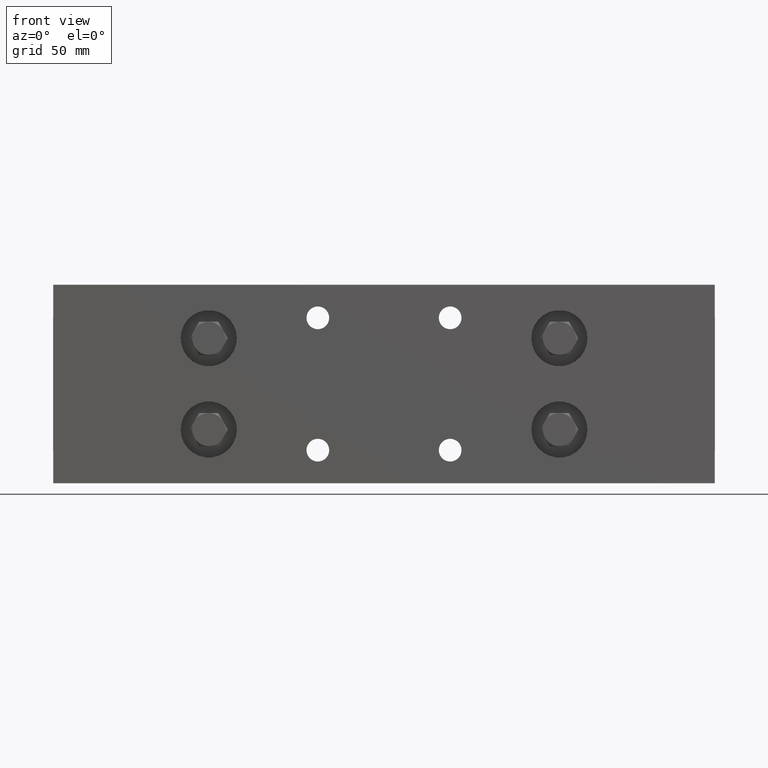
[diagram: clean part render]
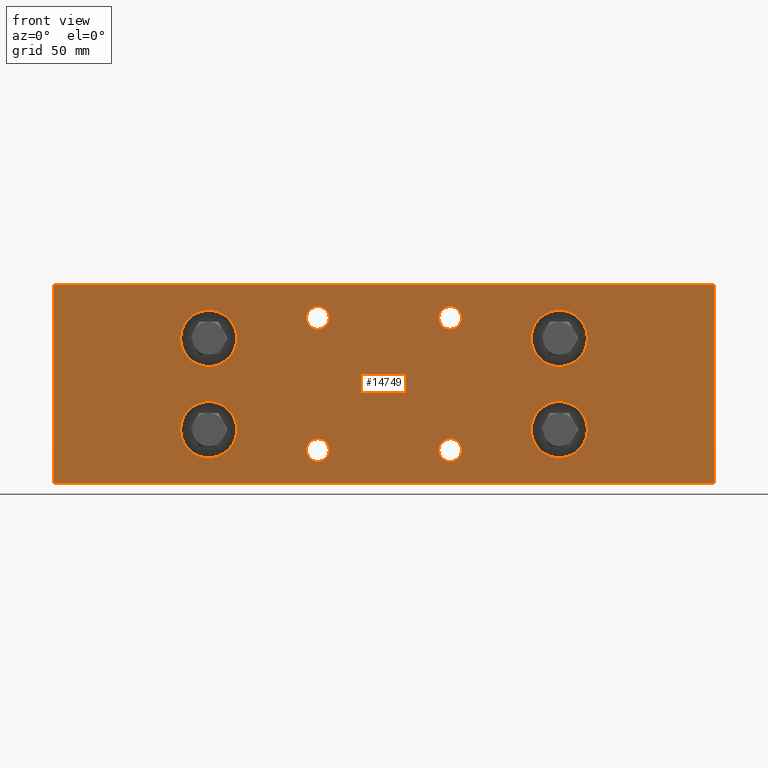
[diagram: same view with one face highlighted and labeled with its STEP entity id]
A machine part, front view. The second image highlights one B-rep face of the part: STEP entity #14749.
In plain terms, the highlighted planar face has unit normal (0, 1, 0).
Its self-contained STEP definition (entity closure, byte-faithful):
#391 = CARTESIAN_POINT ( 'NONE',  ( 0.001999999999999596300, -0.8799999999999998900, -1.501999999999998000 ) ) ;
#708 = LINE ( 'NONE', #15201, #17532 ) ;
#811 = VERTEX_POINT ( 'NONE', #3243 ) ;
#1092 = VERTEX_POINT ( 'NONE', #1358 ) ;
#1122 = LINE ( 'NONE', #14680, #1444 ) ;
#1137 = AXIS2_PLACEMENT_3D ( 'NONE', #20937, #9688, #22854 ) ;
#1153 = CIRCLE ( 'NONE', #2102, 0.4249999999999999900 ) ;
#1269 = PLANE ( 'NONE',  #10591 ) ;
#1358 = CARTESIAN_POINT ( 'NONE',  ( 5.830000000000000100, -0.8799999999999998900, 0.9980000000000023300 ) ) ;
#1444 = VECTOR ( 'NONE', #3492, 39.37007874015748100 ) ;
#2057 = EDGE_LOOP ( 'NONE', ( #14899 ) ) ;
#2102 = AXIS2_PLACEMENT_3D ( 'NONE', #7772, #20904, #9651 ) ;
#2144 = EDGE_LOOP ( 'NONE', ( #2155 ) ) ;
#2155 = ORIENTED_EDGE ( 'NONE', *, *, #18079, .F. ) ;
#2392 = CIRCLE ( 'NONE', #1137, 0.4249999999999999900 ) ;
#2498 = VERTEX_POINT ( 'NONE', #4226 ) ;
#2592 = FACE_BOUND ( 'NONE', #2688, .T. ) ;
#2688 = EDGE_LOOP ( 'NONE', ( #19139 ) ) ;
#2720 = EDGE_CURVE ( 'NONE', #11833, #16682, #9140, .T. ) ;
#2968 = EDGE_LOOP ( 'NONE', ( #17612 ) ) ;
#3004 = CARTESIAN_POINT ( 'NONE',  ( 6.174000000000000400, -0.8799999999999998900, -1.001999999999998000 ) ) ;
#3207 = DIRECTION ( 'NONE',  ( 0.0000000000000000000, 1.000000000000000000, 0.0000000000000000000 ) ) ;
#3243 = CARTESIAN_POINT ( 'NONE',  ( 7.227000000000000300, -0.8799999999999998900, -0.6919999999999976200 ) ) ;
#3492 = DIRECTION ( 'NONE',  ( 2.391543916884179100E-017, -0.0000000000000000000, 1.000000000000000000 ) ) ;
#3758 = ORIENTED_EDGE ( 'NONE', *, *, #13756, .T. ) ;
#4164 = CARTESIAN_POINT ( 'NONE',  ( 7.652000000000000100, -0.8799999999999998900, 0.6880000000000021700 ) ) ;
#4226 = CARTESIAN_POINT ( 'NONE',  ( 10.00200000000000100, -0.8799999999999998900, -1.501999999999998000 ) ) ;
#4751 = CARTESIAN_POINT ( 'NONE',  ( 1.926999999999999400, -0.8799999999999998900, -0.6919999999999976200 ) ) ;
#5390 = CARTESIAN_POINT ( 'NONE',  ( 1.926999999999999400, -0.8799999999999998900, 0.6880000000000021700 ) ) ;
#5412 = CARTESIAN_POINT ( 'NONE',  ( 0.001999999999999596300, -0.8799999999999998900, 1.498000000000002200 ) ) ;
#5417 = VERTEX_POINT ( 'NONE', #5390 ) ;
#5451 = VECTOR ( 'NONE', #6072, 39.37007874015748100 ) ;
#5511 = EDGE_LOOP ( 'NONE', ( #9047 ) ) ;
#5642 = EDGE_LOOP ( 'NONE', ( #17903, #8936, #23748, #17125 ) ) ;
#5847 = DIRECTION ( 'NONE',  ( -1.000000000000000000, 0.0000000000000000000, 2.391543916884179100E-017 ) ) ;
#6016 = DIRECTION ( 'NONE',  ( -1.000000000000000000, 0.0000000000000000000, 0.0000000000000000000 ) ) ;
#6072 = DIRECTION ( 'NONE',  ( 2.391543916884179100E-017, -0.0000000000000000000, 1.000000000000000000 ) ) ;
#6305 = CARTESIAN_POINT ( 'NONE',  ( 0.001999999999999596300, -0.8799999999999998900, -1.501999999999998000 ) ) ;
#6726 = CARTESIAN_POINT ( 'NONE',  ( 3.829999999999999200, -0.8799999999999998900, -1.001999999999998000 ) ) ;
#7204 = FACE_BOUND ( 'NONE', #2057, .T. ) ;
#7772 = CARTESIAN_POINT ( 'NONE',  ( 2.351999999999999400, -0.8799999999999998900, 0.6880000000000021700 ) ) ;
#7901 = DIRECTION ( 'NONE',  ( 0.0000000000000000000, 1.000000000000000000, 0.0000000000000000000 ) ) ;
#8296 = CARTESIAN_POINT ( 'NONE',  ( 7.227000000000000300, -0.8799999999999998900, 0.6880000000000021700 ) ) ;
#8496 = AXIS2_PLACEMENT_3D ( 'NONE', #19140, #7901, #21018 ) ;
#8497 = CARTESIAN_POINT ( 'NONE',  ( 10.00200000000000100, -0.8799999999999998900, 1.498000000000002200 ) ) ;
#8734 = AXIS2_PLACEMENT_3D ( 'NONE', #10366, #23602, #12244 ) ;
#8936 = ORIENTED_EDGE ( 'NONE', *, *, #18119, .F. ) ;
#9047 = ORIENTED_EDGE ( 'NONE', *, *, #23113, .F. ) ;
#9140 = LINE ( 'NONE', #8497, #22467 ) ;
#9216 = DIRECTION ( 'NONE',  ( 0.0000000000000000000, -1.000000000000000000, 0.0000000000000000000 ) ) ;
#9275 = CARTESIAN_POINT ( 'NONE',  ( 6.001999999999999800, -0.8799999999999998900, -1.001999999999998000 ) ) ;
#9485 = VERTEX_POINT ( 'NONE', #6305 ) ;
#9601 = VERTEX_POINT ( 'NONE', #12802 ) ;
#9651 = DIRECTION ( 'NONE',  ( -1.000000000000000000, 0.0000000000000000000, 0.0000000000000000000 ) ) ;
#9688 = DIRECTION ( 'NONE',  ( 0.0000000000000000000, -1.000000000000000000, 0.0000000000000000000 ) ) ;
#9835 = EDGE_CURVE ( 'NONE', #18459, #18459, #21866, .T. ) ;
#10366 = CARTESIAN_POINT ( 'NONE',  ( 4.001999999999999800, -0.8799999999999998900, -1.001999999999998000 ) ) ;
#10418 = CIRCLE ( 'NONE', #12515, 0.1720000000000002400 ) ;
#10591 = AXIS2_PLACEMENT_3D ( 'NONE', #21986, #10686, #23927 ) ;
#10686 = DIRECTION ( 'NONE',  ( 0.0000000000000000000, 1.000000000000000000, 0.0000000000000000000 ) ) ;
#10938 = FACE_BOUND ( 'NONE', #17997, .T. ) ;
#11105 = DIRECTION ( 'NONE',  ( 1.000000000000000000, 0.0000000000000000000, 0.0000000000000000000 ) ) ;
#11833 = VERTEX_POINT ( 'NONE', #16655 ) ;
#12065 = AXIS2_PLACEMENT_3D ( 'NONE', #20463, #9216, #22368 ) ;
#12142 = FACE_BOUND ( 'NONE', #5511, .T. ) ;
#12244 = DIRECTION ( 'NONE',  ( -1.000000000000000000, 0.0000000000000000000, 0.0000000000000000000 ) ) ;
#12515 = AXIS2_PLACEMENT_3D ( 'NONE', #14369, #3207, #16285 ) ;
#12802 = CARTESIAN_POINT ( 'NONE',  ( 4.173999999999999500, -0.8799999999999998900, 0.9980000000000023300 ) ) ;
#12813 = EDGE_CURVE ( 'NONE', #23529, #23529, #20127, .T. ) ;
#13756 = EDGE_CURVE ( 'NONE', #21613, #21613, #18363, .T. ) ;
#14184 = EDGE_CURVE ( 'NONE', #18688, #18688, #15066, .T. ) ;
#14369 = CARTESIAN_POINT ( 'NONE',  ( 6.001999999999999800, -0.8799999999999998900, 0.9980000000000023300 ) ) ;
#14680 = CARTESIAN_POINT ( 'NONE',  ( 10.00200000000000100, -0.8799999999999998900, -1.501999999999998000 ) ) ;
#14710 = FACE_BOUND ( 'NONE', #2144, .T. ) ;
#14749 = ADVANCED_FACE ( 'NONE', ( #17637, #2592, #7204, #20987, #14710, #20981, #12142, #10938, #19242 ), #1269, .F. ) ;
#14899 = ORIENTED_EDGE ( 'NONE', *, *, #17843, .T. ) ;
#14935 = EDGE_CURVE ( 'NONE', #2498, #9485, #708, .T. ) ;
#15066 = CIRCLE ( 'NONE', #8734, 0.1720000000000002400 ) ;
#15201 = CARTESIAN_POINT ( 'NONE',  ( 10.00200000000000100, -0.8799999999999998900, -1.501999999999998000 ) ) ;
#15388 = EDGE_LOOP ( 'NONE', ( #23965 ) ) ;
#16285 = DIRECTION ( 'NONE',  ( -1.000000000000000000, 0.0000000000000000000, 0.0000000000000000000 ) ) ;
#16655 = CARTESIAN_POINT ( 'NONE',  ( 10.00200000000000100, -0.8799999999999998900, 1.498000000000002200 ) ) ;
#16682 = VERTEX_POINT ( 'NONE', #5412 ) ;
#17125 = ORIENTED_EDGE ( 'NONE', *, *, #23062, .T. ) ;
#17277 = DIRECTION ( 'NONE',  ( 0.0000000000000000000, -1.000000000000000000, 0.0000000000000000000 ) ) ;
#17532 = VECTOR ( 'NONE', #5847, 39.37007874015748100 ) ;
#17587 = ORIENTED_EDGE ( 'NONE', *, *, #12813, .F. ) ;
#17612 = ORIENTED_EDGE ( 'NONE', *, *, #14184, .T. ) ;
#17637 = FACE_BOUND ( 'NONE', #2968, .T. ) ;
#17843 = EDGE_CURVE ( 'NONE', #1092, #1092, #10418, .T. ) ;
#17903 = ORIENTED_EDGE ( 'NONE', *, *, #2720, .T. ) ;
#17997 = EDGE_LOOP ( 'NONE', ( #17587 ) ) ;
#18079 = EDGE_CURVE ( 'NONE', #811, #811, #2392, .T. ) ;
#18119 = EDGE_CURVE ( 'NONE', #9485, #16682, #22775, .T. ) ;
#18363 = CIRCLE ( 'NONE', #18931, 0.1720000000000002400 ) ;
#18459 = VERTEX_POINT ( 'NONE', #8296 ) ;
#18688 = VERTEX_POINT ( 'NONE', #6726 ) ;
#18931 = AXIS2_PLACEMENT_3D ( 'NONE', #9275, #22428, #11105 ) ;
#19139 = ORIENTED_EDGE ( 'NONE', *, *, #22838, .T. ) ;
#19140 = CARTESIAN_POINT ( 'NONE',  ( 4.001999999999999800, -0.8799999999999998900, 0.9980000000000023300 ) ) ;
#19242 = FACE_OUTER_BOUND ( 'NONE', #5642, .T. ) ;
#19731 = DIRECTION ( 'NONE',  ( -1.000000000000000000, 0.0000000000000000000, 2.391543916884179100E-017 ) ) ;
#20127 = CIRCLE ( 'NONE', #12065, 0.4249999999999999900 ) ;
#20463 = CARTESIAN_POINT ( 'NONE',  ( 2.351999999999999400, -0.8799999999999998900, -0.6919999999999976200 ) ) ;
#20904 = DIRECTION ( 'NONE',  ( 0.0000000000000000000, -1.000000000000000000, 0.0000000000000000000 ) ) ;
#20937 = CARTESIAN_POINT ( 'NONE',  ( 7.652000000000000100, -0.8799999999999998900, -0.6919999999999976200 ) ) ;
#20981 = FACE_BOUND ( 'NONE', #15388, .T. ) ;
#20987 = FACE_BOUND ( 'NONE', #21806, .T. ) ;
#21018 = DIRECTION ( 'NONE',  ( 1.000000000000000000, 0.0000000000000000000, 0.0000000000000000000 ) ) ;
#21613 = VERTEX_POINT ( 'NONE', #3004 ) ;
#21806 = EDGE_LOOP ( 'NONE', ( #3758 ) ) ;
#21866 = CIRCLE ( 'NONE', #23189, 0.4249999999999999900 ) ;
#21986 = CARTESIAN_POINT ( 'NONE',  ( 10.00200000000000100, -0.8799999999999998900, -1.501999999999998000 ) ) ;
#22368 = DIRECTION ( 'NONE',  ( -1.000000000000000000, 0.0000000000000000000, 0.0000000000000000000 ) ) ;
#22428 = DIRECTION ( 'NONE',  ( 0.0000000000000000000, 1.000000000000000000, 0.0000000000000000000 ) ) ;
#22467 = VECTOR ( 'NONE', #19731, 39.37007874015748100 ) ;
#22775 = LINE ( 'NONE', #391, #5451 ) ;
#22838 = EDGE_CURVE ( 'NONE', #9601, #9601, #22882, .T. ) ;
#22854 = DIRECTION ( 'NONE',  ( -1.000000000000000000, 0.0000000000000000000, 0.0000000000000000000 ) ) ;
#22882 = CIRCLE ( 'NONE', #8496, 0.1720000000000002400 ) ;
#23062 = EDGE_CURVE ( 'NONE', #2498, #11833, #1122, .T. ) ;
#23113 = EDGE_CURVE ( 'NONE', #5417, #5417, #1153, .T. ) ;
#23189 = AXIS2_PLACEMENT_3D ( 'NONE', #4164, #17277, #6016 ) ;
#23529 = VERTEX_POINT ( 'NONE', #4751 ) ;
#23602 = DIRECTION ( 'NONE',  ( 0.0000000000000000000, 1.000000000000000000, 0.0000000000000000000 ) ) ;
#23748 = ORIENTED_EDGE ( 'NONE', *, *, #14935, .F. ) ;
#23927 = DIRECTION ( 'NONE',  ( 1.000000000000000000, 0.0000000000000000000, -2.391543916884179100E-017 ) ) ;
#23965 = ORIENTED_EDGE ( 'NONE', *, *, #9835, .F. ) ;